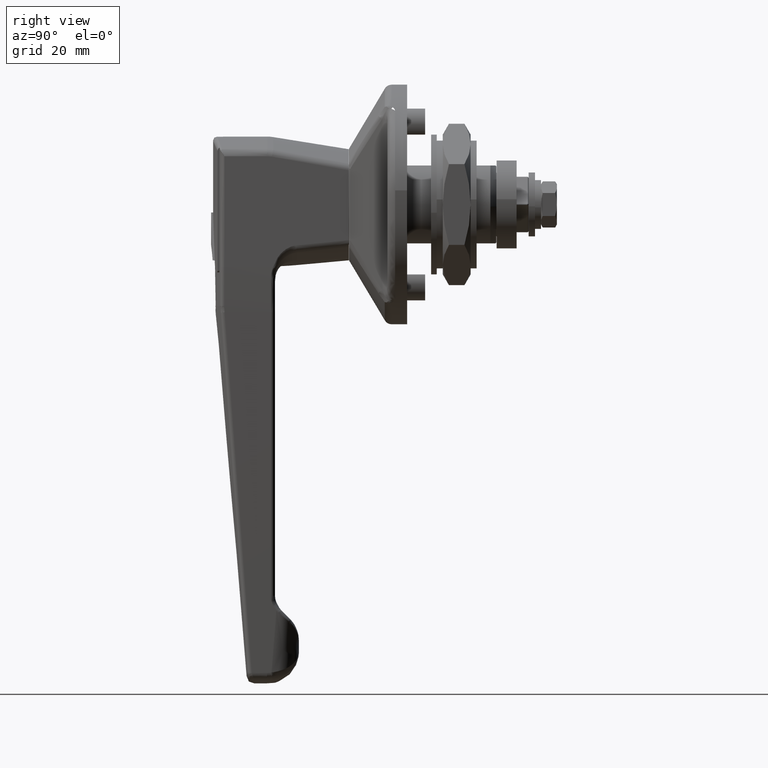
[diagram: clean part render]
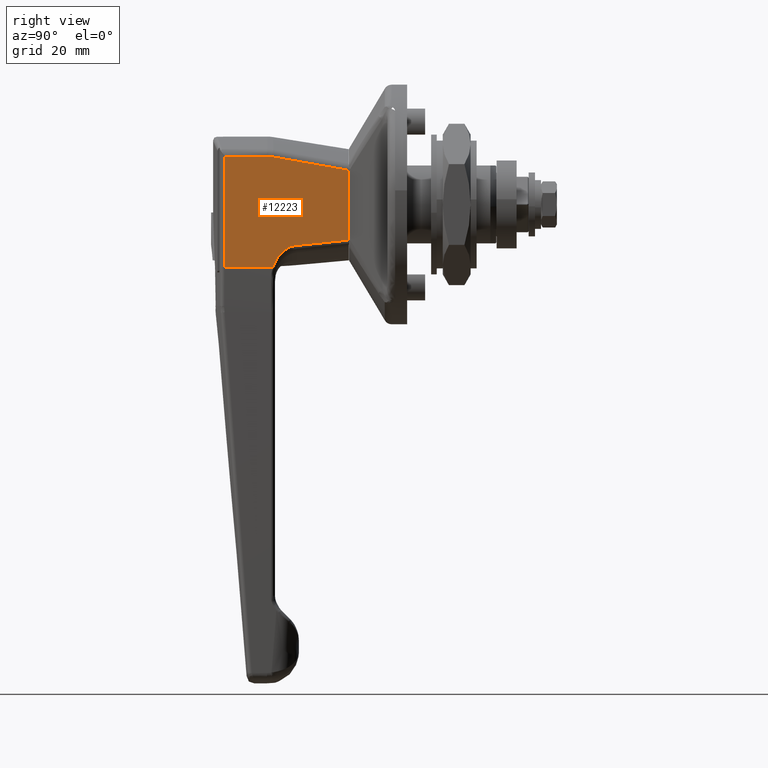
[diagram: same view with one face highlighted and labeled with its STEP entity id]
A machine part, right view. The second image highlights one B-rep face of the part: STEP entity #12223.
In plain terms, the highlighted face is a freeform B-spline surface patch.
Its self-contained STEP definition (entity closure, byte-faithful):
#5894=CARTESIAN_POINT('',(-33.568550825130451,-13.500000000000000,-15.685443348486549));
#5895=VERTEX_POINT('',#5894);
#5930=CARTESIAN_POINT('',(-27.813562268313099,-13.500000000000000,-10.264880556170439));
#5931=VERTEX_POINT('',#5930);
#5941=CARTESIAN_POINT('',(-33.568550825130451,-13.500000000000000,-15.685443348486549));
#5942=CARTESIAN_POINT('',(-33.114284177154012,-13.500000000000000,-14.472745839525871));
#5943=CARTESIAN_POINT('',(-32.601173438978059,-13.500000000000000,-13.601435531601570));
#5944=CARTESIAN_POINT('',(-31.961304607045051,-13.500000000000000,-12.514878054819670));
#5945=CARTESIAN_POINT('',(-31.134702447756069,-13.500000000000000,-11.778225005623421));
#5946=CARTESIAN_POINT('',(-29.646294617357128,-13.500000000000000,-10.451782587842070));
#5947=CARTESIAN_POINT('',(-27.813562268313099,-13.500000000000000,-10.264880556170439));
#5948=B_SPLINE_CURVE_WITH_KNOTS('',2,(#5941,#5942,#5943,#5944,#5945,#5946,#5947),.UNSPECIFIED.,.F.,.U.,(3,2,2,3),(0.0,0.285714285714285,0.571428571428571,1.0),.UNSPECIFIED.);
#5949=EDGE_CURVE('',#5895,#5931,#5948,.T.);
#5974=CARTESIAN_POINT('',(-14.600000000000000,-13.500000000000000,-8.909342005059822));
#5975=VERTEX_POINT('',#5974);
#5998=CARTESIAN_POINT('',(-27.813562268313099,-13.500000000000000,-10.264880556170439));
#5999=CARTESIAN_POINT('',(-23.408694188204130,-13.500000000000000,-9.816426232679877));
#6000=CARTESIAN_POINT('',(-19.004148405370440,-13.500000000000000,-9.364810246071087));
#6001=CARTESIAN_POINT('',(-14.600000000000000,-13.500000000000000,-8.909342005059822));
#6002=QUASI_UNIFORM_CURVE('',3,(#5998,#5999,#6000,#6001),.UNSPECIFIED.,.F.,.U.);
#6003=EDGE_CURVE('',#5931,#5975,#6002,.T.);
#8703=CARTESIAN_POINT('',(-45.760645157680898,-13.500000000000000,-15.685443348486549));
#8704=VERTEX_POINT('',#8703);
#8962=CARTESIAN_POINT('',(-45.760645157680898,-13.500000000000000,12.065374432940899));
#8963=VERTEX_POINT('',#8962);
#8992=CARTESIAN_POINT('',(-45.760645157680898,-13.500000000000000,12.065374432940899));
#8993=CARTESIAN_POINT('',(-45.760645157680898,-13.500000000000000,-15.685443348486549));
#8994=QUASI_UNIFORM_CURVE('',1,(#8992,#8993),.UNSPECIFIED.,.F.,.U.);
#8995=EDGE_CURVE('',#8963,#8704,#8994,.T.);
#9250=CARTESIAN_POINT('',(-33.852668247796302,-13.500000000000000,11.961433840638721));
#9251=VERTEX_POINT('',#9250);
#9265=CARTESIAN_POINT('',(-14.600000000000000,-13.500000000000000,8.543720048810739));
#9266=VERTEX_POINT('',#9265);
#9267=CARTESIAN_POINT('',(-14.600000000000000,-13.500000000000000,8.543720048810739));
#9268=CARTESIAN_POINT('',(-17.806258268571860,-13.500000000000000,9.127533399701546));
#9269=CARTESIAN_POINT('',(-21.014009869103759,-13.500000000000000,9.702934511907387));
#9270=CARTESIAN_POINT('',(-27.431767969375791,-13.500000000000000,10.841034436409970));
#9271=CARTESIAN_POINT('',(-30.641778222516351,-13.500000000000000,11.403712106480510));
#9272=CARTESIAN_POINT('',(-33.852668247796302,-13.500000000000000,11.961433840638721));
#9273=B_SPLINE_CURVE_WITH_KNOTS('',3,(#9267,#9268,#9269,#9270,#9271,#9272),.UNSPECIFIED.,.F.,.U.,(4,2,4),(0.0,0.500000000000000,1.0),.UNSPECIFIED.);
#9274=EDGE_CURVE('',#9266,#9251,#9273,.T.);
#9332=CARTESIAN_POINT('',(-35.057057999999898,-13.500000000000000,12.065374432940899));
#9333=VERTEX_POINT('',#9332);
#9347=CARTESIAN_POINT('',(-33.852668247796302,-13.500000000000000,11.961433840638721));
#9348=CARTESIAN_POINT('',(-34.251148234757324,-13.500000000000000,12.030648646265909));
#9349=CARTESIAN_POINT('',(-34.652604674358592,-13.500000000000000,12.065374432940960));
#9350=CARTESIAN_POINT('',(-35.057057999999898,-13.500000000000000,12.065374432940960));
#9351=QUASI_UNIFORM_CURVE('',3,(#9347,#9348,#9349,#9350),.UNSPECIFIED.,.F.,.U.);
#9352=EDGE_CURVE('',#9251,#9333,#9351,.T.);
#9386=CARTESIAN_POINT('',(-35.057057999999898,-13.500000000000000,12.065374432940899));
#9387=CARTESIAN_POINT('',(-45.760645157680898,-13.500000000000000,12.065374432940899));
#9388=QUASI_UNIFORM_CURVE('',1,(#9386,#9387),.UNSPECIFIED.,.F.,.U.);
#9389=EDGE_CURVE('',#9333,#8963,#9388,.T.);
#12048=CARTESIAN_POINT('',(-14.600000000000000,-13.500000000000000,8.543720048810739));
#12049=CARTESIAN_POINT('',(-14.600000000000000,-13.500000000000000,-8.909342005059822));
#12050=QUASI_UNIFORM_CURVE('',1,(#12048,#12049),.UNSPECIFIED.,.F.,.U.);
#12051=EDGE_CURVE('',#9266,#5975,#12050,.T.);
#12204=CARTESIAN_POINT('',(-47.317120966667019,-13.500000000000000,-17.071596382377550));
#12205=CARTESIAN_POINT('',(-47.317120966667019,-13.500000000000000,13.451528459278491));
#12206=CARTESIAN_POINT('',(-13.043527255590529,-13.500000000000000,-17.071596382377550));
#12207=CARTESIAN_POINT('',(-13.043527255590529,-13.500000000000000,13.451528459278491));
#12208=B_SPLINE_SURFACE_WITH_KNOTS('',1,1,((#12204,#12206),(#12205,#12207)),.UNSPECIFIED.,.F.,.F.,.U.,(2,2),(2,2),(0.0,30.523124841656038),(0.0,34.273593711076487),.UNSPECIFIED.);
#12209=CARTESIAN_POINT('',(-33.568550825130451,-13.500000000000000,-15.685443348486549));
#12210=CARTESIAN_POINT('',(-45.760645157680898,-13.500000000000000,-15.685443348486549));
#12211=QUASI_UNIFORM_CURVE('',1,(#12209,#12210),.UNSPECIFIED.,.F.,.U.);
#12212=EDGE_CURVE('',#5895,#8704,#12211,.T.);
#12213=ORIENTED_EDGE('',*,*,#12212,.F.);
#12214=ORIENTED_EDGE('',*,*,#5949,.T.);
#12215=ORIENTED_EDGE('',*,*,#6003,.T.);
#12216=ORIENTED_EDGE('',*,*,#12051,.F.);
#12217=ORIENTED_EDGE('',*,*,#9274,.T.);
#12218=ORIENTED_EDGE('',*,*,#9352,.T.);
#12219=ORIENTED_EDGE('',*,*,#9389,.T.);
#12220=ORIENTED_EDGE('',*,*,#8995,.T.);
#12221=EDGE_LOOP('',(#12213,#12214,#12215,#12216,#12217,#12218,#12219,#12220));
#12222=FACE_OUTER_BOUND('',#12221,.T.);
#12223=ADVANCED_FACE('',(#12222),#12208,.F.);